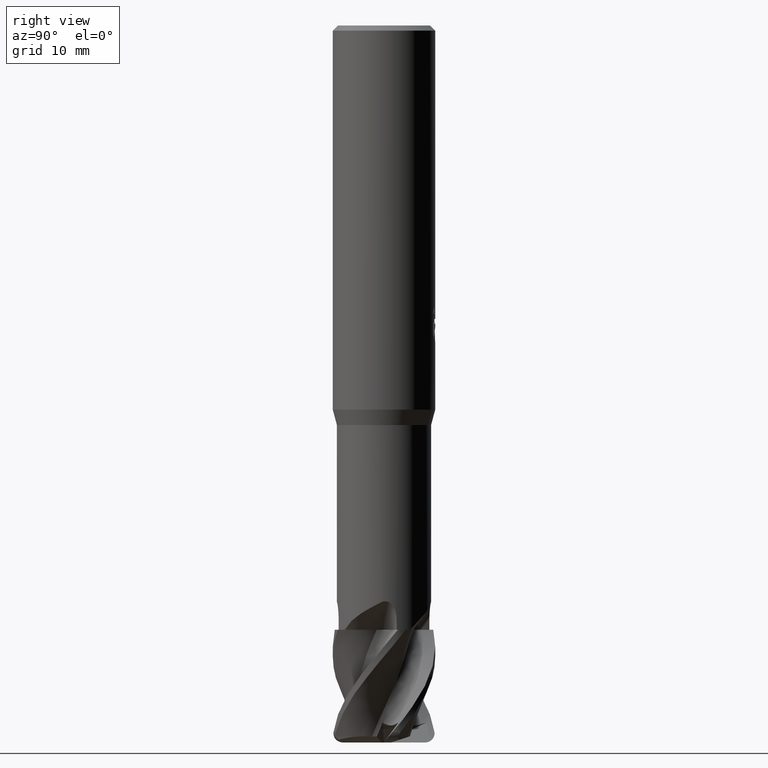
[diagram: clean part render]
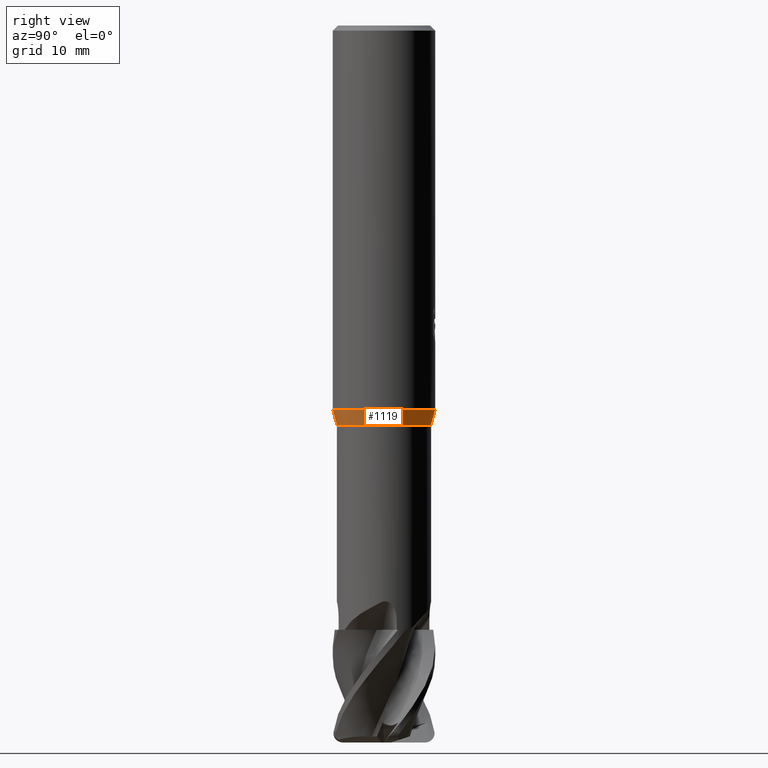
[diagram: same view with one face highlighted and labeled with its STEP entity id]
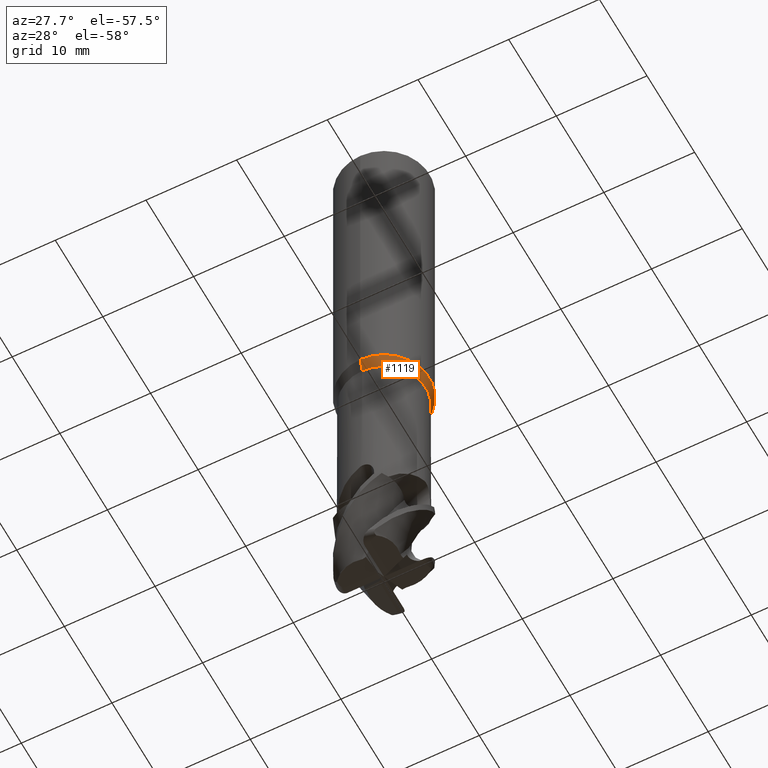
[diagram: same view with one face highlighted and labeled with its STEP entity id]
A machine part, right view. The second image highlights one B-rep face of the part: STEP entity #1119.
A second angle (auxiliary view) of the same face is appended — the face is thin or edge-on in the first view.
In plain terms, the highlighted conical surface has half-angle 14.998 deg.
Its self-contained STEP definition (entity closure, byte-faithful):
#551=VERTEX_POINT('',#1535);
#585=EDGE_CURVE('',#1185,#551,#1571,.T.);
#783=VERTEX_POINT('',#1788);
#1119=ADVANCED_FACE('',(#2156),#2157,.T.);
#1185=VERTEX_POINT('',#2226);
#1257=VERTEX_POINT('',#2303);
#1285=EDGE_CURVE('',#1257,#1185,#2332,.T.);
#1289=EDGE_CURVE('',#551,#783,#2336,.T.);
#1359=EDGE_CURVE('',#1257,#783,#2412,.T.);
#1535=CARTESIAN_POINT('',(5.63312799726524E-016,-4.59995,-39.0));
#1571=CIRCLE('',#3029,4.59995);
#1788=CARTESIAN_POINT('',(6.12297053879419E-016,-4.99995,-37.507));
#2156=FACE_OUTER_BOUND('',#7191,.T.);
#2157=CONICAL_SURFACE('',#7192,4.79995,0.261769300990559);
#2226=CARTESIAN_POINT('',(0.0,4.59995,-39.0));
#2303=CARTESIAN_POINT('',(0.0,4.99995,-37.507));
#2332=LINE('',#8042,#8043);
#2336=LINE('',#8056,#8057);
#2412=CIRCLE('',#8305,4.99995);
#3029=AXIS2_PLACEMENT_3D('',#9094,#9095,#9096);
#7191=EDGE_LOOP('',(#9726,#9727,#9728,#9729));
#7192=AXIS2_PLACEMENT_3D('',#9730,#9731,#9732);
#8042=CARTESIAN_POINT('',(-5.87804926802972E-016,4.79995,-38.2535));
#8043=VECTOR('',#9855,1.0);
#8056=CARTESIAN_POINT('',(5.87804926802972E-016,-4.79995,-38.2535));
#8057=VECTOR('',#9856,1.0);
#8305=AXIS2_PLACEMENT_3D('',#9922,#9923,#9924);
#9094=CARTESIAN_POINT('',(0.0,0.0,-39.0));
#9095=DIRECTION('',(0.0,0.0,-1.0));
#9096=DIRECTION('',(0.0,1.0,0.0));
#9726=ORIENTED_EDGE('',*,*,#1285,.F.);
#9727=ORIENTED_EDGE('',*,*,#1359,.T.);
#9728=ORIENTED_EDGE('',*,*,#1289,.F.);
#9729=ORIENTED_EDGE('',*,*,#585,.F.);
#9730=CARTESIAN_POINT('',(0.0,0.0,-38.2535));
#9731=DIRECTION('',(-0.0,-0.0,1.0));
#9732=DIRECTION('',(0.0,1.0,0.0));
#9855=DIRECTION('',(3.16915857928162E-017,-0.258789983359934,-0.965933612890951));
#9856=DIRECTION('',(3.16915857928162E-017,-0.258789983359934,0.965933612890951));
#9922=CARTESIAN_POINT('',(0.0,0.0,-37.507));
#9923=DIRECTION('',(0.0,0.0,-1.0));
#9924=DIRECTION('',(0.0,1.0,0.0));